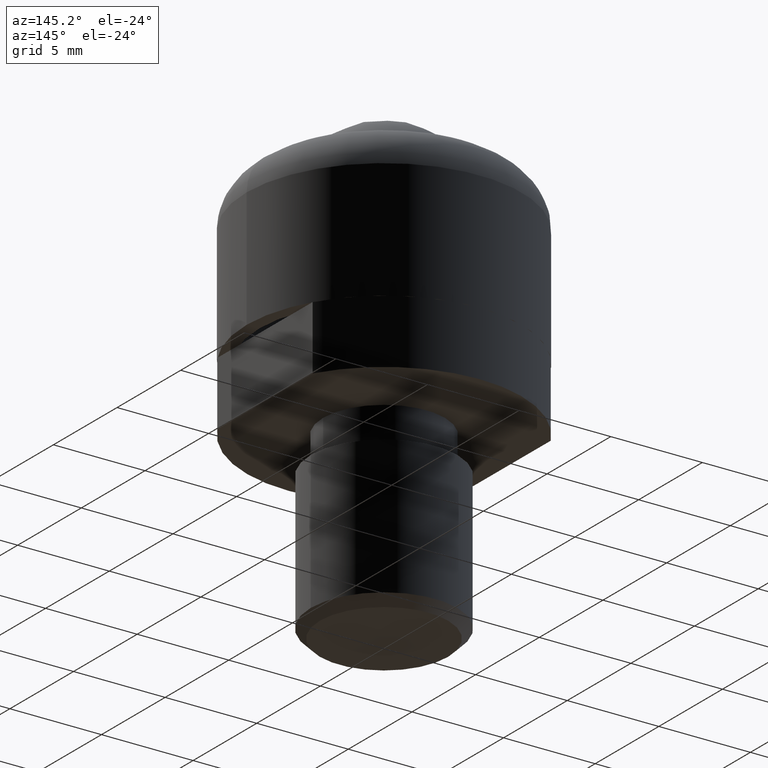
[diagram: clean part render]
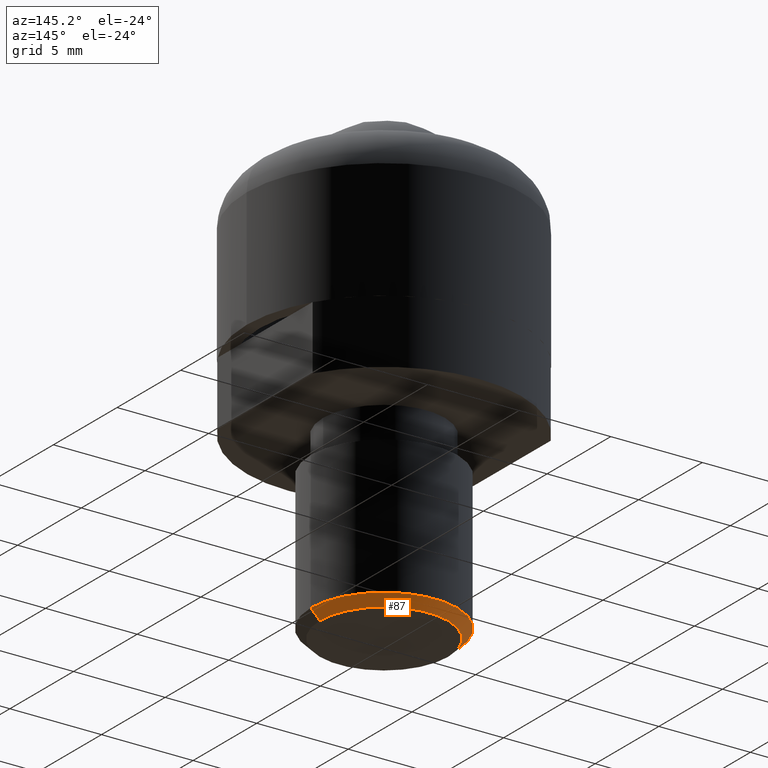
[diagram: same view with one face highlighted and labeled with its STEP entity id]
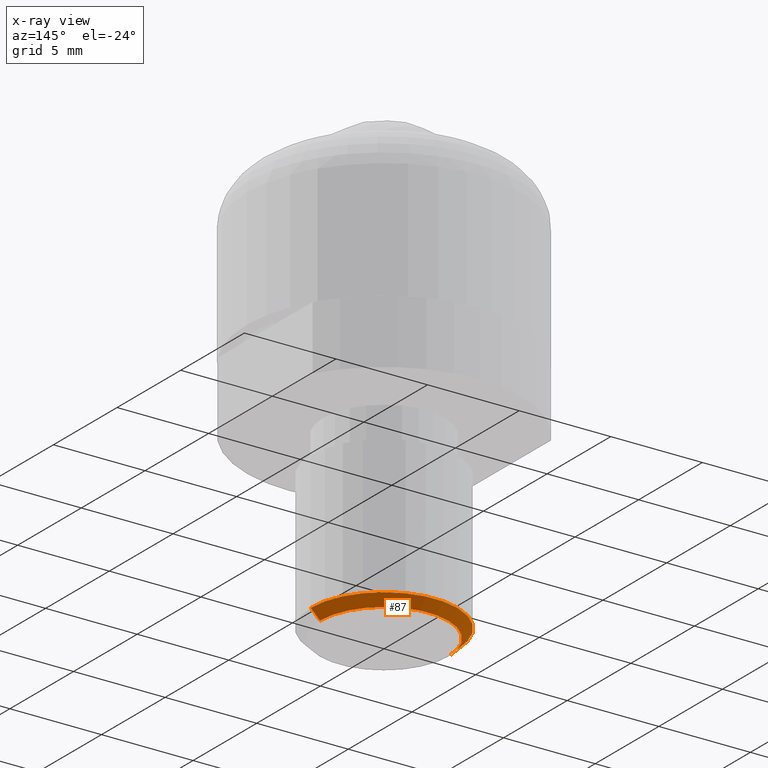
[diagram: x-ray of the same camera — body ghosted, the highlighted face saturated]
A machine part, auxiliary view. The second image highlights one B-rep face of the part: STEP entity #87.
The next image is the same camera in x-ray: the body ghosted, the highlighted face saturated — about 0% of this face is hidden behind the body in this view.
In plain terms, the highlighted conical surface has half-angle 45 deg.
Its self-contained STEP definition (entity closure, byte-faithful):
#43 = CONICAL_SURFACE ( 'NONE', #600, 3.500000000000000000, 0.7853981633974476100 ) ;
#45 = LINE ( 'NONE', #870, #171 ) ;
#64 = EDGE_CURVE ( 'NONE', #258, #716, #45, .T. ) ;
#87 = ADVANCED_FACE ( 'NONE', ( #199 ), #43, .T. ) ;
#140 = ORIENTED_EDGE ( 'NONE', *, *, #318, .T. ) ;
#142 = VERTEX_POINT ( 'NONE', #184 ) ;
#171 = VECTOR ( 'NONE', #793, 1000.000000000000000 ) ;
#184 = CARTESIAN_POINT ( 'NONE',  ( -3.500000000000000000, 4.592425496802574000E-016, -13.49999999999986100 ) ) ;
#193 = VERTEX_POINT ( 'NONE', #617 ) ;
#199 = FACE_OUTER_BOUND ( 'NONE', #877, .T. ) ;
#258 = VERTEX_POINT ( 'NONE', #529 ) ;
#317 = CARTESIAN_POINT ( 'NONE',  ( -3.500000000000000000, 4.286263797015736600E-016, -13.49999999999986100 ) ) ;
#318 = EDGE_CURVE ( 'NONE', #193, #716, #536, .T. ) ;
#336 = DIRECTION ( 'NONE',  ( -1.000000000000000000, 0.0000000000000000000, 0.0000000000000000000 ) ) ;
#368 = ORIENTED_EDGE ( 'NONE', *, *, #64, .F. ) ;
#398 = CARTESIAN_POINT ( 'NONE',  ( 4.000000000000000000, 0.0000000000000000000, -12.99999999999986100 ) ) ;
#464 = CARTESIAN_POINT ( 'NONE',  ( 0.0000000000000000000, 0.0000000000000000000, -13.49999999999986100 ) ) ;
#511 = AXIS2_PLACEMENT_3D ( 'NONE', #907, #850, #691 ) ;
#529 = CARTESIAN_POINT ( 'NONE',  ( 3.500000000000000000, 0.0000000000000000000, -13.49999999999986100 ) ) ;
#536 = CIRCLE ( 'NONE', #511, 4.000000000000000000 ) ;
#566 = DIRECTION ( 'NONE',  ( 0.0000000000000000000, 0.0000000000000000000, 1.000000000000000000 ) ) ;
#600 = AXIS2_PLACEMENT_3D ( 'NONE', #636, #566, #644 ) ;
#617 = CARTESIAN_POINT ( 'NONE',  ( -4.000000000000000000, 4.898587196589412800E-016, -12.99999999999986100 ) ) ;
#636 = CARTESIAN_POINT ( 'NONE',  ( 0.0000000000000000000, 0.0000000000000000000, -13.49999999999986100 ) ) ;
#644 = DIRECTION ( 'NONE',  ( 1.000000000000000000, 0.0000000000000000000, 0.0000000000000000000 ) ) ;
#663 = ORIENTED_EDGE ( 'NONE', *, *, #880, .T. ) ;
#678 = EDGE_CURVE ( 'NONE', #142, #258, #789, .T. ) ;
#691 = DIRECTION ( 'NONE',  ( -1.000000000000000000, 0.0000000000000000000, 0.0000000000000000000 ) ) ;
#716 = VERTEX_POINT ( 'NONE', #398 ) ;
#739 = AXIS2_PLACEMENT_3D ( 'NONE', #464, #858, #336 ) ;
#776 = LINE ( 'NONE', #317, #941 ) ;
#789 = CIRCLE ( 'NONE', #739, 3.500000000000000000 ) ;
#793 = DIRECTION ( 'NONE',  ( 0.7071067811865470200, 0.0000000000000000000, 0.7071067811865480200 ) ) ;
#850 = DIRECTION ( 'NONE',  ( 0.0000000000000000000, 0.0000000000000000000, -1.000000000000000000 ) ) ;
#858 = DIRECTION ( 'NONE',  ( 0.0000000000000000000, 0.0000000000000000000, -1.000000000000000000 ) ) ;
#870 = CARTESIAN_POINT ( 'NONE',  ( 3.500000000000000000, 0.0000000000000000000, -13.49999999999986100 ) ) ;
#871 = ORIENTED_EDGE ( 'NONE', *, *, #678, .F. ) ;
#877 = EDGE_LOOP ( 'NONE', ( #871, #663, #140, #368 ) ) ;
#880 = EDGE_CURVE ( 'NONE', #142, #193, #776, .T. ) ;
#907 = CARTESIAN_POINT ( 'NONE',  ( 0.0000000000000000000, 0.0000000000000000000, -12.99999999999986100 ) ) ;
#909 = DIRECTION ( 'NONE',  ( -0.7071067811865470200, 8.659560562354926700E-017, 0.7071067811865480200 ) ) ;
#941 = VECTOR ( 'NONE', #909, 1000.000000000000000 ) ;